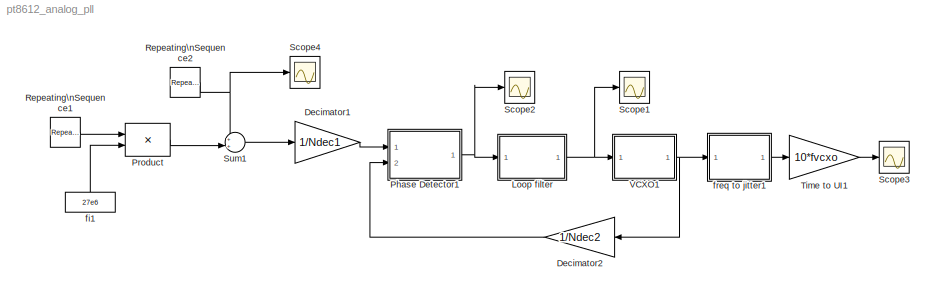
MODEL pt8612_analog_pll
KIND model
CONFIG AbsTol = 1e-13
CONFIG FixedStep = auto
CONFIG MaxStep = 1e-4
CONFIG MinStep = auto
CONFIG RelTol = 1e-10
CONFIG Solver = ode45
CONFIG SolverMode = Auto
CONFIG StartTime = 0.0
CONFIG StopTime = 35
BLOCK [Gain] Decimator1
  Gain = 1/Ndec1
BLOCK [Gain] Decimator2
  Gain = 1/Ndec2
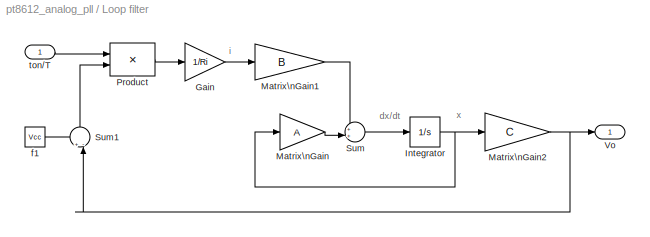
BLOCK [SubSystem] Loop filter
  Ports = [1, 1]
  TreatAsAtomicUnit = off
BLOCK [Gain] Loop filter/Gain
  Gain = 1/Ri
BLOCK [Integrator] Loop filter/Integrator
  InitialCondition = [1.25 1.25].'
  Ports = [1, 1]
BLOCK [Gain] Loop filter/Matrix\nGain
  Gain = A
  Multiplication = Matrix(K*u) (u vector)
BLOCK [Gain] Loop filter/Matrix\nGain1
  Gain = B
  Multiplication = Matrix(K*u)
BLOCK [Gain] Loop filter/Matrix\nGain2
  Gain = C
  Multiplication = Matrix(K*u) (u vector)
BLOCK [Product] Loop filter/Product
  InputSameDT = off
  Ports = [2, 1]
BLOCK [Sum] Loop filter/Sum
  IconShape = round
  InputSameDT = off
  Inputs = ++|
  OutDataTypeMode = Inherit via internal rule
  Ports = [2, 1]
BLOCK [Sum] Loop filter/Sum1
  IconShape = round
  InputSameDT = off
  Inputs = +-|
  OutDataTypeMode = Inherit via internal rule
  Ports = [2, 1]
BLOCK [Outport] Loop filter/Vo
BLOCK [Constant] Loop filter/f1
  Value = Vcc
BLOCK [Inport] Loop filter/ton//T
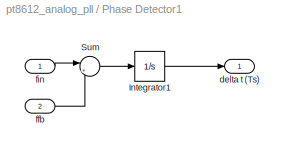
BLOCK [SubSystem] Phase Detector1
  Ports = [2, 1]
  TreatAsAtomicUnit = off
BLOCK [Integrator] Phase Detector1/Integrator1
  InitialCondition = 0.062
  Ports = [1, 1]
BLOCK [Sum] Phase Detector1/Sum
  IconShape = round
  InputSameDT = off
  Inputs = |+-
  OutDataTypeMode = Inherit via internal rule
  Ports = [2, 1]
BLOCK [Outport] Phase Detector1/delta t (Ts)
BLOCK [Inport] Phase Detector1/ffb
  Port = 2
BLOCK [Inport] Phase Detector1/fin
BLOCK [Product] Product
  InputSameDT = off
  Ports = [2, 1]
BLOCK [Reference] Repeating\nSequence1  REF=simulink/Sources/Repeating\nSequence
  Ports = [0, 1]
  SourceBlock = simulink/Sources/Repeating\nSequence
  SourceType = Repeating table
  rep_seq_t = [0 10 10 20]
  rep_seq_y = 1+([0 0 30 30]*1e-6)*0
BLOCK [Reference] Repeating\nSequence2  REF=simulink/Sources/Repeating\nSequence
  Ports = [0, 1]
  SourceBlock = simulink/Sources/Repeating\nSequence
  SourceType = Repeating table
  rep_seq_t = [0 8-1e-3 8-1e-3 8 8 16-1e-3 16-1e-3 16]
  rep_seq_y = [0 0 1 1 0 0 -1 -1]*30*1e3
BLOCK [Scope] Scope1
  DataFormat = StructureWithTime
  LimitDataPoints = off
  NumInputPorts = 1
  Ports = [1]
  TimeRange = 13.94281180037974
  YMax = 5.12826
  YMin = 4.87505
  ZoomMode = xonly
BLOCK [Scope] Scope2
  DataFormat = StructureWithTime
  LimitDataPoints = off
  NumInputPorts = 1
  Ports = [1]
  SaveName = ScopeData1
  TimeRange = 13.94281180037974
  YMax = 0.75
  YMin = 0.05
  ZoomMode = xonly
BLOCK [Scope] Scope3
  DataFormat = StructureWithTime
  LimitDataPoints = off
  NumInputPorts = 1
  Ports = [1]
  SaveName = ScopeData4
  TimeRange = 13.94281180037974
  YMax = 27
  YMin = 15
BLOCK [Scope] Scope4
  DataFormat = StructureWithTime
  LimitDataPoints = off
  NumInputPorts = 1
  Ports = [1]
  SaveName = ScopeData2
  TimeRange = 13.94281180037974
  YMax = 1
  YMin = -1
  ZoomMode = xonly
BLOCK [Sum] Sum1
  IconShape = round
  InputSameDT = off
  Inputs = ++|
  OutDataTypeMode = Inherit via internal rule
  Ports = [2, 1]
BLOCK [Gain] Time to UI1
  Gain = 10*fvcxo
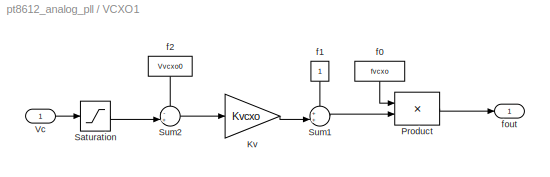
BLOCK [SubSystem] VCXO1
  Ports = [1, 1]
  TreatAsAtomicUnit = off
BLOCK [Gain] VCXO1/Kv
  Gain = Kvcxo
BLOCK [Product] VCXO1/Product
  InputSameDT = off
  Ports = [2, 1]
BLOCK [Saturate] VCXO1/Saturation
  LowerLimit = Vvcxomin
  UpperLimit = Vvcxomax
BLOCK [Sum] VCXO1/Sum1
  IconShape = round
  InputSameDT = off
  Inputs = ++|
  OutDataTypeMode = Inherit via internal rule
  Ports = [2, 1]
BLOCK [Sum] VCXO1/Sum2
  IconShape = round
  InputSameDT = off
  Inputs = -+|
  OutDataTypeMode = Inherit via internal rule
  Ports = [2, 1]
BLOCK [Inport] VCXO1/Vc
BLOCK [Constant] VCXO1/f0
  Value = fvcxo
BLOCK [Constant] VCXO1/f1
BLOCK [Constant] VCXO1/f2
  Value = Vvcxo0
BLOCK [Outport] VCXO1/fout
BLOCK [Constant] fi1
  Value = 27e6
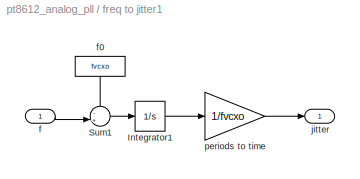
BLOCK [SubSystem] freq to jitter1
  Ports = [1, 1]
  TreatAsAtomicUnit = off
BLOCK [Integrator] freq to jitter1/Integrator1
  Ports = [1, 1]
BLOCK [Sum] freq to jitter1/Sum1
  IconShape = round
  InputSameDT = off
  Inputs = -+|
  OutDataTypeMode = Inherit via internal rule
  Ports = [2, 1]
BLOCK [Inport] freq to jitter1/f
BLOCK [Constant] freq to jitter1/f0
  Value = fvcxo
BLOCK [Outport] freq to jitter1/jitter
BLOCK [Gain] freq to jitter1/periods to time
  Gain = 1/fvcxo
ANNOTATION Loop filter: dx/dt
ANNOTATION Loop filter: i
ANNOTATION Loop filter: x
LINE Decimator1:1 -> Phase Detector1:1
LINE Decimator2:1 -> Phase Detector1:2
LINE Loop filter/Gain:1 -> Loop filter/Matrix\nGain1:1
NET Loop filter/Integrator:1 -> Loop filter/Matrix\nGain2:1, Loop filter/Matrix\nGain:1
LINE Loop filter/Matrix\nGain1:1 -> Loop filter/Sum:1
NET Loop filter/Matrix\nGain2:1 -> Loop filter/Sum1:2, Loop filter/Vo:1
LINE Loop filter/Matrix\nGain:1 -> Loop filter/Sum:2
LINE Loop filter/Product:1 -> Loop filter/Gain:1
LINE Loop filter/Sum1:1 -> Loop filter/Product:2
LINE Loop filter/Sum:1 -> Loop filter/Integrator:1
LINE Loop filter/f1:1 -> Loop filter/Sum1:1
LINE Loop filter/ton//T:1 -> Loop filter/Product:1
NET Loop filter:1 -> Scope1:1, VCXO1:1
LINE Phase Detector1/Integrator1:1 -> Phase Detector1/delta t (Ts):1
LINE Phase Detector1/Sum:1 -> Phase Detector1/Integrator1:1
LINE Phase Detector1/ffb:1 -> Phase Detector1/Sum:2
LINE Phase Detector1/fin:1 -> Phase Detector1/Sum:1
NET Phase Detector1:1 -> Loop filter:1, Scope2:1
LINE Product:1 -> Sum1:2
LINE Repeating\nSequence1:1 -> Product:1
NET Repeating\nSequence2:1 -> Scope4:1, Sum1:1
LINE Sum1:1 -> Decimator1:1
LINE Time to UI1:1 -> Scope3:1
LINE VCXO1/Kv:1 -> VCXO1/Sum1:2
LINE VCXO1/Product:1 -> VCXO1/fout:1
LINE VCXO1/Saturation:1 -> VCXO1/Sum2:2
LINE VCXO1/Sum1:1 -> VCXO1/Product:2
LINE VCXO1/Sum2:1 -> VCXO1/Kv:1
LINE VCXO1/Vc:1 -> VCXO1/Saturation:1
LINE VCXO1/f0:1 -> VCXO1/Product:1
LINE VCXO1/f1:1 -> VCXO1/Sum1:1
LINE VCXO1/f2:1 -> VCXO1/Sum2:1
NET VCXO1:1 -> Decimator2:1, freq to jitter1:1
LINE fi1:1 -> Product:2
LINE freq to jitter1/Integrator1:1 -> freq to jitter1/periods to time:1
LINE freq to jitter1/Sum1:1 -> freq to jitter1/Integrator1:1
LINE freq to jitter1/f0:1 -> freq to jitter1/Sum1:1
LINE freq to jitter1/f:1 -> freq to jitter1/Sum1:2
LINE freq to jitter1/periods to time:1 -> freq to jitter1/jitter:1
LINE freq to jitter1:1 -> Time to UI1:1
note: NET lines group one-source signal fan-out (src -> all destinations, sorted); 1:1 wires keep LINE
